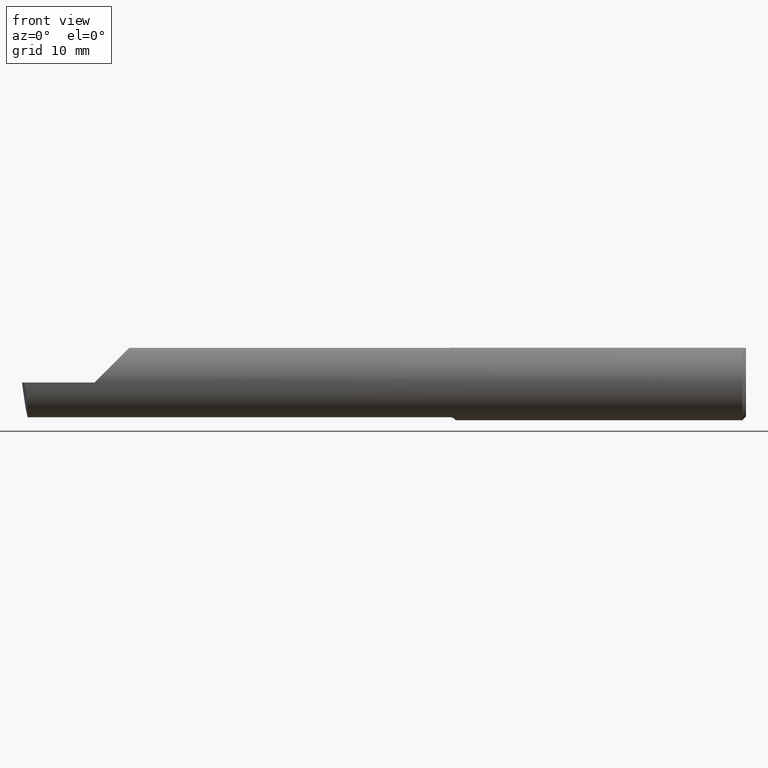
[diagram: clean part render]
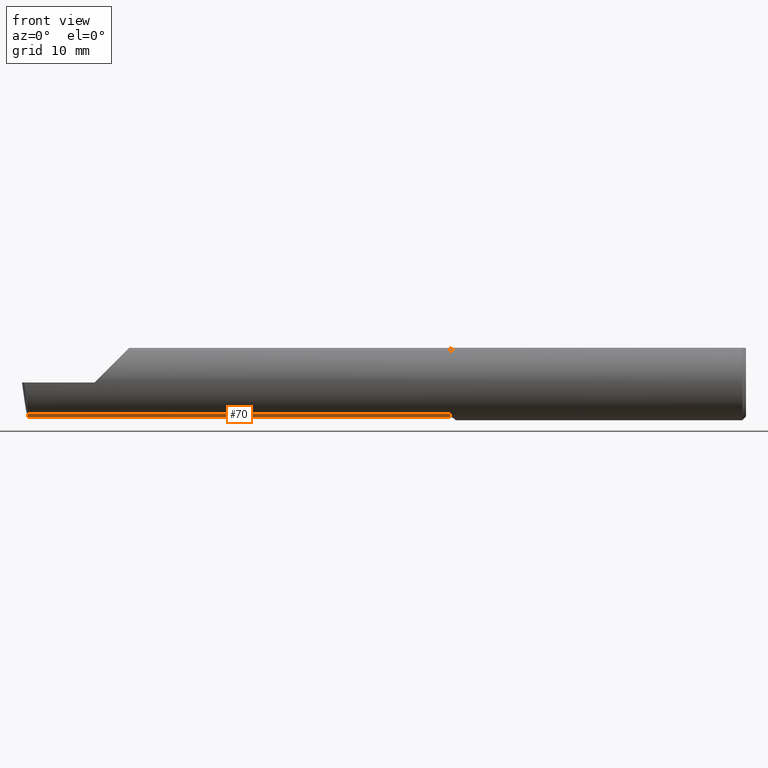
[diagram: same view with one face highlighted and labeled with its STEP entity id]
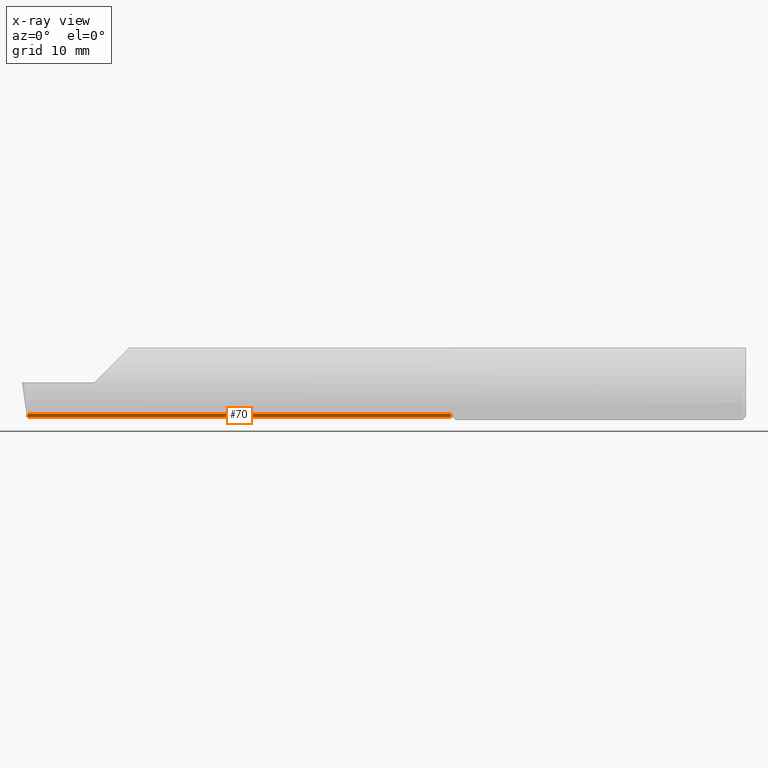
[diagram: x-ray of the same camera — body ghosted, the highlighted face saturated]
A machine part, front view. The second image highlights one B-rep face of the part: STEP entity #70.
The next image is the same camera in x-ray: the body ghosted, the highlighted face saturated — about 0% of this face is hidden behind the body in this view.
In plain terms, the highlighted cylindrical surface (edge-blend (fillet) strip) has radius 3.6551 mm, axis along (1, -0, -0).
Its self-contained STEP definition (entity closure, byte-faithful):
#5 = EDGE_CURVE ( 'NONE', #230, #632, #17, .T. ) ;
#17 = LINE ( 'NONE', #685, #267 ) ;
#44 = DIRECTION ( 'NONE',  ( 1.000000000000000000, -0.000000000000000000, -0.000000000000000000 ) ) ;
#64 = EDGE_CURVE ( 'NONE', #632, #96, #725, .T. ) ;
#70 = ADVANCED_FACE ( 'NONE', ( #657 ), #662, .T. ) ;
#92 = DIRECTION ( 'NONE',  ( 0.000000000000000000, 0.000000000000000000, 1.000000000000000000 ) ) ;
#96 = VERTEX_POINT ( 'NONE', #264 ) ;
#102 = CARTESIAN_POINT ( 'NONE',  ( -2.975676552398976771, -0.08569999999999965146, -0.1304711462354801732 ) ) ;
#118 =( BOUNDED_CURVE ( )  B_SPLINE_CURVE ( 3, ( #102, #732, #557, #604 ),
 .UNSPECIFIED., .F., .F. ) 
 B_SPLINE_CURVE_WITH_KNOTS ( ( 4, 4 ),
 ( 6.122674497807365945, 6.558126988897921450 ),
 .UNSPECIFIED. ) 
 CURVE ( )  GEOMETRIC_REPRESENTATION_ITEM ( )  RATIONAL_B_SPLINE_CURVE ( ( 1.000000000000000000, 0.9842607512044745377, 0.9842607512044745377, 1.000000000000000000 ) ) 
 REPRESENTATION_ITEM ( '' )  );
#167 = EDGE_CURVE ( 'NONE', #224, #230, #118, .T. ) ;
#191 = CARTESIAN_POINT ( 'NONE',  ( -1.225000000000000311, -0.02500000000000000486, 0.000000000000000000 ) ) ;
#224 = VERTEX_POINT ( 'NONE', #688 ) ;
#230 = VERTEX_POINT ( 'NONE', #453 ) ;
#240 = EDGE_LOOP ( 'NONE', ( #412, #509, #397, #697 ) ) ;
#242 = CARTESIAN_POINT ( 'NONE',  ( -1.225000000000000311, -0.02500000000000002220, -0.1438999999999999446 ) ) ;
#264 = CARTESIAN_POINT ( 'NONE',  ( -1.225000000000000311, -0.08570000000000031759, -0.1304711462354797846 ) ) ;
#267 = VECTOR ( 'NONE', #624, 39.37007874015748143 ) ;
#342 = VECTOR ( 'NONE', #539, 39.37007874015748143 ) ;
#396 = AXIS2_PLACEMENT_3D ( 'NONE', #191, #418, #441 ) ;
#397 = ORIENTED_EDGE ( 'NONE', *, *, #64, .T. ) ;
#412 = ORIENTED_EDGE ( 'NONE', *, *, #167, .T. ) ;
#418 = DIRECTION ( 'NONE',  ( -1.000000000000000000, 0.000000000000000000, 0.000000000000000000 ) ) ;
#440 = EDGE_CURVE ( 'NONE', #224, #96, #572, .T. ) ;
#441 = DIRECTION ( 'NONE',  ( 0.000000000000000000, 0.000000000000000000, 1.000000000000000000 ) ) ;
#453 = CARTESIAN_POINT ( 'NONE',  ( -2.976130359589496344, -0.02500000000000002220, -0.1439000000000000279 ) ) ;
#457 = AXIS2_PLACEMENT_3D ( 'NONE', #669, #44, #92 ) ;
#509 = ORIENTED_EDGE ( 'NONE', *, *, #5, .T. ) ;
#539 = DIRECTION ( 'NONE',  ( 1.000000000000000000, -0.000000000000000000, -0.000000000000000000 ) ) ;
#557 = CARTESIAN_POINT ( 'NONE',  ( -2.975400702430881505, -0.04605394310600637725, -0.1439000000000000279 ) ) ;
#572 = LINE ( 'NONE', #601, #342 ) ;
#601 = CARTESIAN_POINT ( 'NONE',  ( -1.972499999999999698, -0.08569999999999965146, -0.1304711462354801732 ) ) ;
#604 = CARTESIAN_POINT ( 'NONE',  ( -2.976130359589496344, -0.02500000000000002220, -0.1439000000000000279 ) ) ;
#624 = DIRECTION ( 'NONE',  ( 1.000000000000000000, -0.000000000000000000, -0.000000000000000000 ) ) ;
#632 = VERTEX_POINT ( 'NONE', #242 ) ;
#657 = FACE_OUTER_BOUND ( 'NONE', #240, .T. ) ;
#662 = CYLINDRICAL_SURFACE ( 'NONE', #457, 0.1439000000000000279 ) ;
#669 = CARTESIAN_POINT ( 'NONE',  ( 0.000000000000000000, -0.02500000000000000486, 0.000000000000000000 ) ) ;
#685 = CARTESIAN_POINT ( 'NONE',  ( 0.000000000000000000, -0.02500000000000002220, -0.1439000000000000279 ) ) ;
#688 = CARTESIAN_POINT ( 'NONE',  ( -2.975676552398976771, -0.08569999999999965146, -0.1304711462354801732 ) ) ;
#697 = ORIENTED_EDGE ( 'NONE', *, *, #440, .F. ) ;
#725 = CIRCLE ( 'NONE', #396, 0.1438999999999999446 ) ;
#732 = CARTESIAN_POINT ( 'NONE',  ( -2.975247014433751058, -0.06661082633900432259, -0.1393521354400290013 ) ) ;